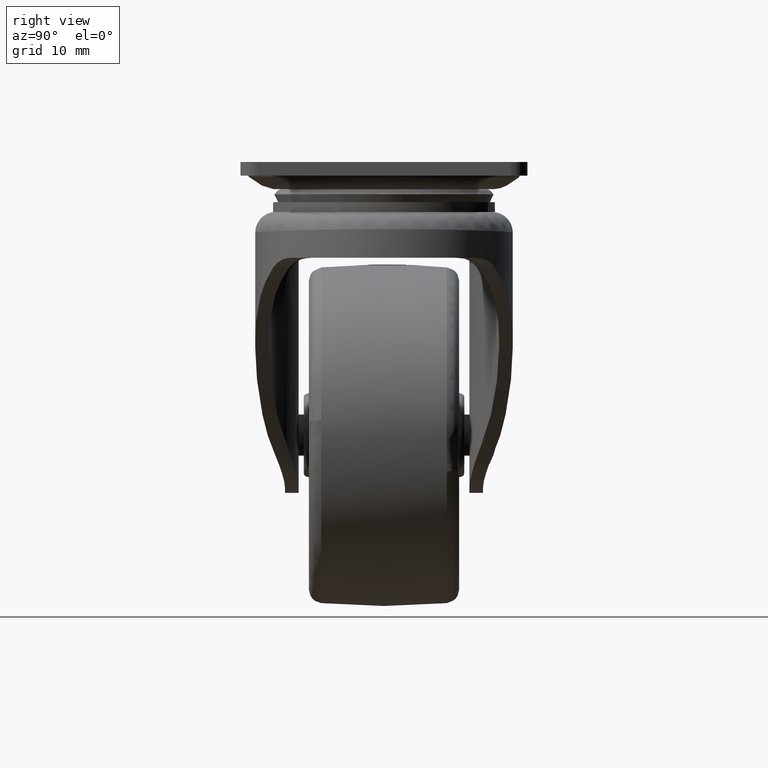
[diagram: clean part render]
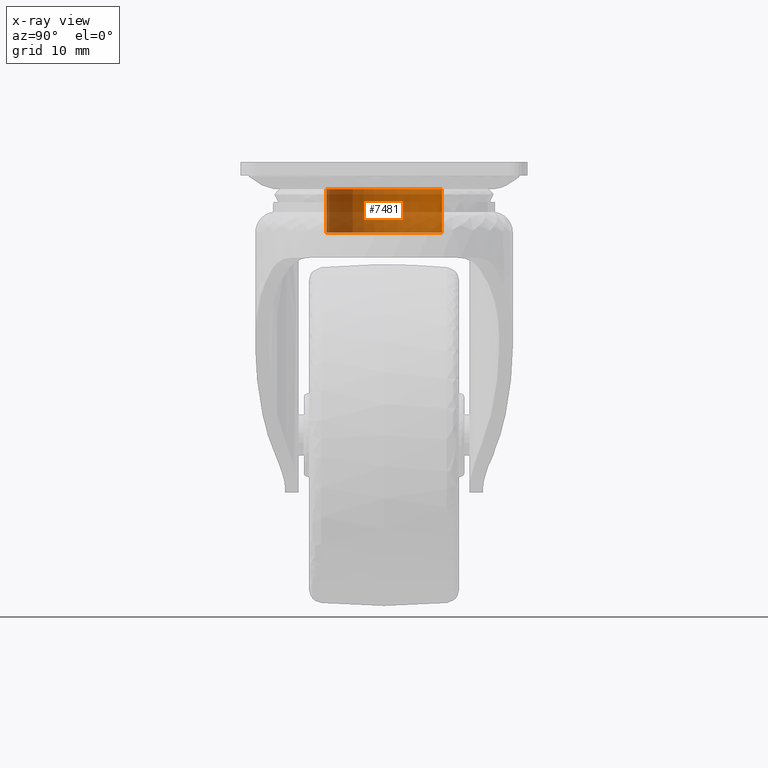
[diagram: x-ray — body ghosted, one internal face saturated and labeled with its STEP entity id]
A machine part, right view, then the same camera in x-ray: the body is ghosted and one INTERNAL B-rep face — a face not visible from any outside direction — is saturated and labeled: STEP entity #7481.
In plain terms, the highlighted face is a freeform B-spline surface patch.
Its self-contained STEP definition (entity closure, byte-faithful):
#7379=CARTESIAN_POINT('',(1.003290168342812,-8.440574023024480,-3.808622175000105));
#7380=CARTESIAN_POINT('',(0.761724566119717,-8.469287756599840,-3.808622175000105));
#7381=CARTESIAN_POINT('',(0.518912158706515,-8.484138799642279,-3.808622175000105));
#7382=CARTESIAN_POINT('',(-7.965226640935764,-9.003050958348794,-3.808622175000105));
#7383=CARTESIAN_POINT('',(-8.484138799642279,-0.518912158706515,-3.808622175000105));
#7384=CARTESIAN_POINT('',(-9.003050958348794,7.965226640935764,-3.808622175000105));
#7385=CARTESIAN_POINT('',(-0.518912158706515,8.484138799642279,-3.808622175000105));
#7386=CARTESIAN_POINT('',(1.003290168342812,-8.440574023024480,-10.506475270625106));
#7387=CARTESIAN_POINT('',(0.761724566119717,-8.469287756599840,-10.506475270625103));
#7388=CARTESIAN_POINT('',(0.518912158706515,-8.484138799642279,-10.506475270625099));
#7389=CARTESIAN_POINT('',(-7.965226640935764,-9.003050958348794,-10.506475270625103));
#7390=CARTESIAN_POINT('',(-8.484138799642279,-0.518912158706515,-10.506475270625099));
#7391=CARTESIAN_POINT('',(-9.003050958348794,7.965226640935764,-10.506475270625103));
#7392=CARTESIAN_POINT('',(-0.518912158706515,8.484138799642279,-10.506475270625099));
#7400=(BOUNDED_SURFACE()B_SPLINE_SURFACE(2,1,((#7379,#7386),(#7380,#7387),(#7381,#7388),(#7382,#7389),(#7383,#7390),(#7384,#7391),(#7385,#7392)),.UNSPECIFIED.,.F.,.F.,.U.)B_SPLINE_SURFACE_WITH_KNOTS((3,2,2,3),(2,2),(0.0,0.563329980908220,14.646579503613710,28.729829026319191),(0.0,6.697853095625000),.UNSPECIFIED.)GEOMETRIC_REPRESENTATION_ITEM()RATIONAL_B_SPLINE_SURFACE(((0.977505800795127,0.977505800795127),(0.988284271247462,0.988284271247462),(1.0,1.0),(0.707106781186548,0.707106781186548),(1.0,1.0),(0.707106781186548,0.707106781186548),(1.0,1.0)))REPRESENTATION_ITEM('')SURFACE());
#7401=CARTESIAN_POINT('',(1.003290168390219,-8.440574023018842,-10.343113000000100));
#7402=VERTEX_POINT('',#7401);
#7403=CARTESIAN_POINT('',(-8.499993000000002,7.105427E-015,-10.343113000000100));
#7404=VERTEX_POINT('',#7403);
#7405=CARTESIAN_POINT('',(1.003290168390219,-8.440574023018842,-10.343113000000102));
#7406=CARTESIAN_POINT('',(0.503404602520312,-8.499992999999995,-10.343113000000104));
#7407=CARTESIAN_POINT('',(0.0,-8.499992999999995,-10.343113000000100));
#7408=CARTESIAN_POINT('',(-8.499993000000002,-8.499992999999995,-10.343113000000100));
#7409=CARTESIAN_POINT('',(-8.499993000000002,7.105427E-015,-10.343113000000100));
#7417=(BOUNDED_CURVE()B_SPLINE_CURVE(2,(#7405,#7406,#7407,#7408,#7409),.UNSPECIFIED.,.F.,.U.)B_SPLINE_CURVE_WITH_KNOTS((3,2,3),(0.729562473513746,0.750000000000000,1.0),.UNSPECIFIED.)CURVE()GEOMETRIC_REPRESENTATION_ITEM()RATIONAL_B_SPLINE_CURVE((0.956026754184164,0.976055948331423,1.0,0.707106781186547,1.0))REPRESENTATION_ITEM(''));
#7418=EDGE_CURVE('',#7402,#7404,#7417,.T.);
#7419=ORIENTED_EDGE('',*,*,#7418,.T.);
#7420=CARTESIAN_POINT('',(-0.518912158783131,8.484138799637599,-10.343113000000100));
#7421=VERTEX_POINT('',#7420);
#7422=CARTESIAN_POINT('',(-8.499993000000002,7.105427E-015,-10.343113000000100));
#7423=CARTESIAN_POINT('',(-8.499993000000002,7.995994983611253,-10.343113000000100));
#7424=CARTESIAN_POINT('',(-0.518912158783131,8.484138799637599,-10.343113000000100));
#7432=(BOUNDED_CURVE()B_SPLINE_CURVE(2,(#7422,#7423,#7424),.UNSPECIFIED.,.F.,.U.)B_SPLINE_CURVE_WITH_KNOTS((3,3),(0.0,0.239332962238852),.UNSPECIFIED.)CURVE()GEOMETRIC_REPRESENTATION_ITEM()RATIONAL_B_SPLINE_CURVE((1.0,0.719603993286817,0.976072041666523))REPRESENTATION_ITEM(''));
#7433=EDGE_CURVE('',#7404,#7421,#7432,.T.);
#7434=ORIENTED_EDGE('',*,*,#7433,.T.);
#7435=CARTESIAN_POINT('',(-0.518912158783133,8.484138799637597,-3.968000000000105));
#7436=VERTEX_POINT('',#7435);
#7437=CARTESIAN_POINT('',(-0.518912158783133,8.484138799637597,-3.968000000000105));
#7438=CARTESIAN_POINT('',(-0.518912158783131,8.484138799637599,-10.343113000000100));
#7439=QUASI_UNIFORM_CURVE('',1,(#7437,#7438),.UNSPECIFIED.,.F.,.U.);
#7440=EDGE_CURVE('',#7436,#7421,#7439,.T.);
#7441=ORIENTED_EDGE('',*,*,#7440,.F.);
#7442=CARTESIAN_POINT('',(-8.499993000000002,7.105427E-015,-3.968000000000105));
#7443=VERTEX_POINT('',#7442);
#7444=CARTESIAN_POINT('',(-8.499993000000002,7.105427E-015,-3.968000000000105));
#7445=CARTESIAN_POINT('',(-8.499993000000002,7.995994983611253,-3.968000000000106));
#7446=CARTESIAN_POINT('',(-0.518912158783133,8.484138799637597,-3.968000000000105));
#7454=(BOUNDED_CURVE()B_SPLINE_CURVE(2,(#7444,#7445,#7446),.UNSPECIFIED.,.F.,.U.)B_SPLINE_CURVE_WITH_KNOTS((3,3),(0.500000000000000,0.739332962238852),.UNSPECIFIED.)CURVE()GEOMETRIC_REPRESENTATION_ITEM()RATIONAL_B_SPLINE_CURVE((1.0,0.719603993286817,0.976072041666523))REPRESENTATION_ITEM(''));
#7455=EDGE_CURVE('',#7443,#7436,#7454,.T.);
#7456=ORIENTED_EDGE('',*,*,#7455,.F.);
#7457=CARTESIAN_POINT('',(1.003290168390219,-8.440574023018842,-3.968000000000105));
#7458=VERTEX_POINT('',#7457);
#7459=CARTESIAN_POINT('',(1.003290168390219,-8.440574023018842,-3.968000000000104));
#7460=CARTESIAN_POINT('',(0.503404602520312,-8.499992999999995,-3.968000000000105));
#7461=CARTESIAN_POINT('',(0.0,-8.499992999999995,-3.968000000000105));
#7462=CARTESIAN_POINT('',(-8.499993000000002,-8.499992999999995,-3.968000000000106));
#7463=CARTESIAN_POINT('',(-8.499993000000002,7.105427E-015,-3.968000000000105));
#7471=(BOUNDED_CURVE()B_SPLINE_CURVE(2,(#7459,#7460,#7461,#7462,#7463),.UNSPECIFIED.,.F.,.U.)B_SPLINE_CURVE_WITH_KNOTS((3,2,3),(0.229562473513746,0.250000000000000,0.500000000000000),.UNSPECIFIED.)CURVE()GEOMETRIC_REPRESENTATION_ITEM()RATIONAL_B_SPLINE_CURVE((0.956026754184164,0.976055948331423,1.0,0.707106781186547,1.0))REPRESENTATION_ITEM(''));
#7472=EDGE_CURVE('',#7458,#7443,#7471,.T.);
#7473=ORIENTED_EDGE('',*,*,#7472,.F.);
#7474=CARTESIAN_POINT('',(1.003290168390219,-8.440574023018842,-3.968000000000105));
#7475=CARTESIAN_POINT('',(1.003290168390219,-8.440574023018842,-10.343113000000100));
#7476=QUASI_UNIFORM_CURVE('',1,(#7474,#7475),.UNSPECIFIED.,.F.,.U.);
#7477=EDGE_CURVE('',#7458,#7402,#7476,.T.);
#7478=ORIENTED_EDGE('',*,*,#7477,.T.);
#7479=EDGE_LOOP('',(#7419,#7434,#7441,#7456,#7473,#7478));
#7480=FACE_OUTER_BOUND('',#7479,.T.);
#7481=ADVANCED_FACE('',(#7480),#7400,.F.);